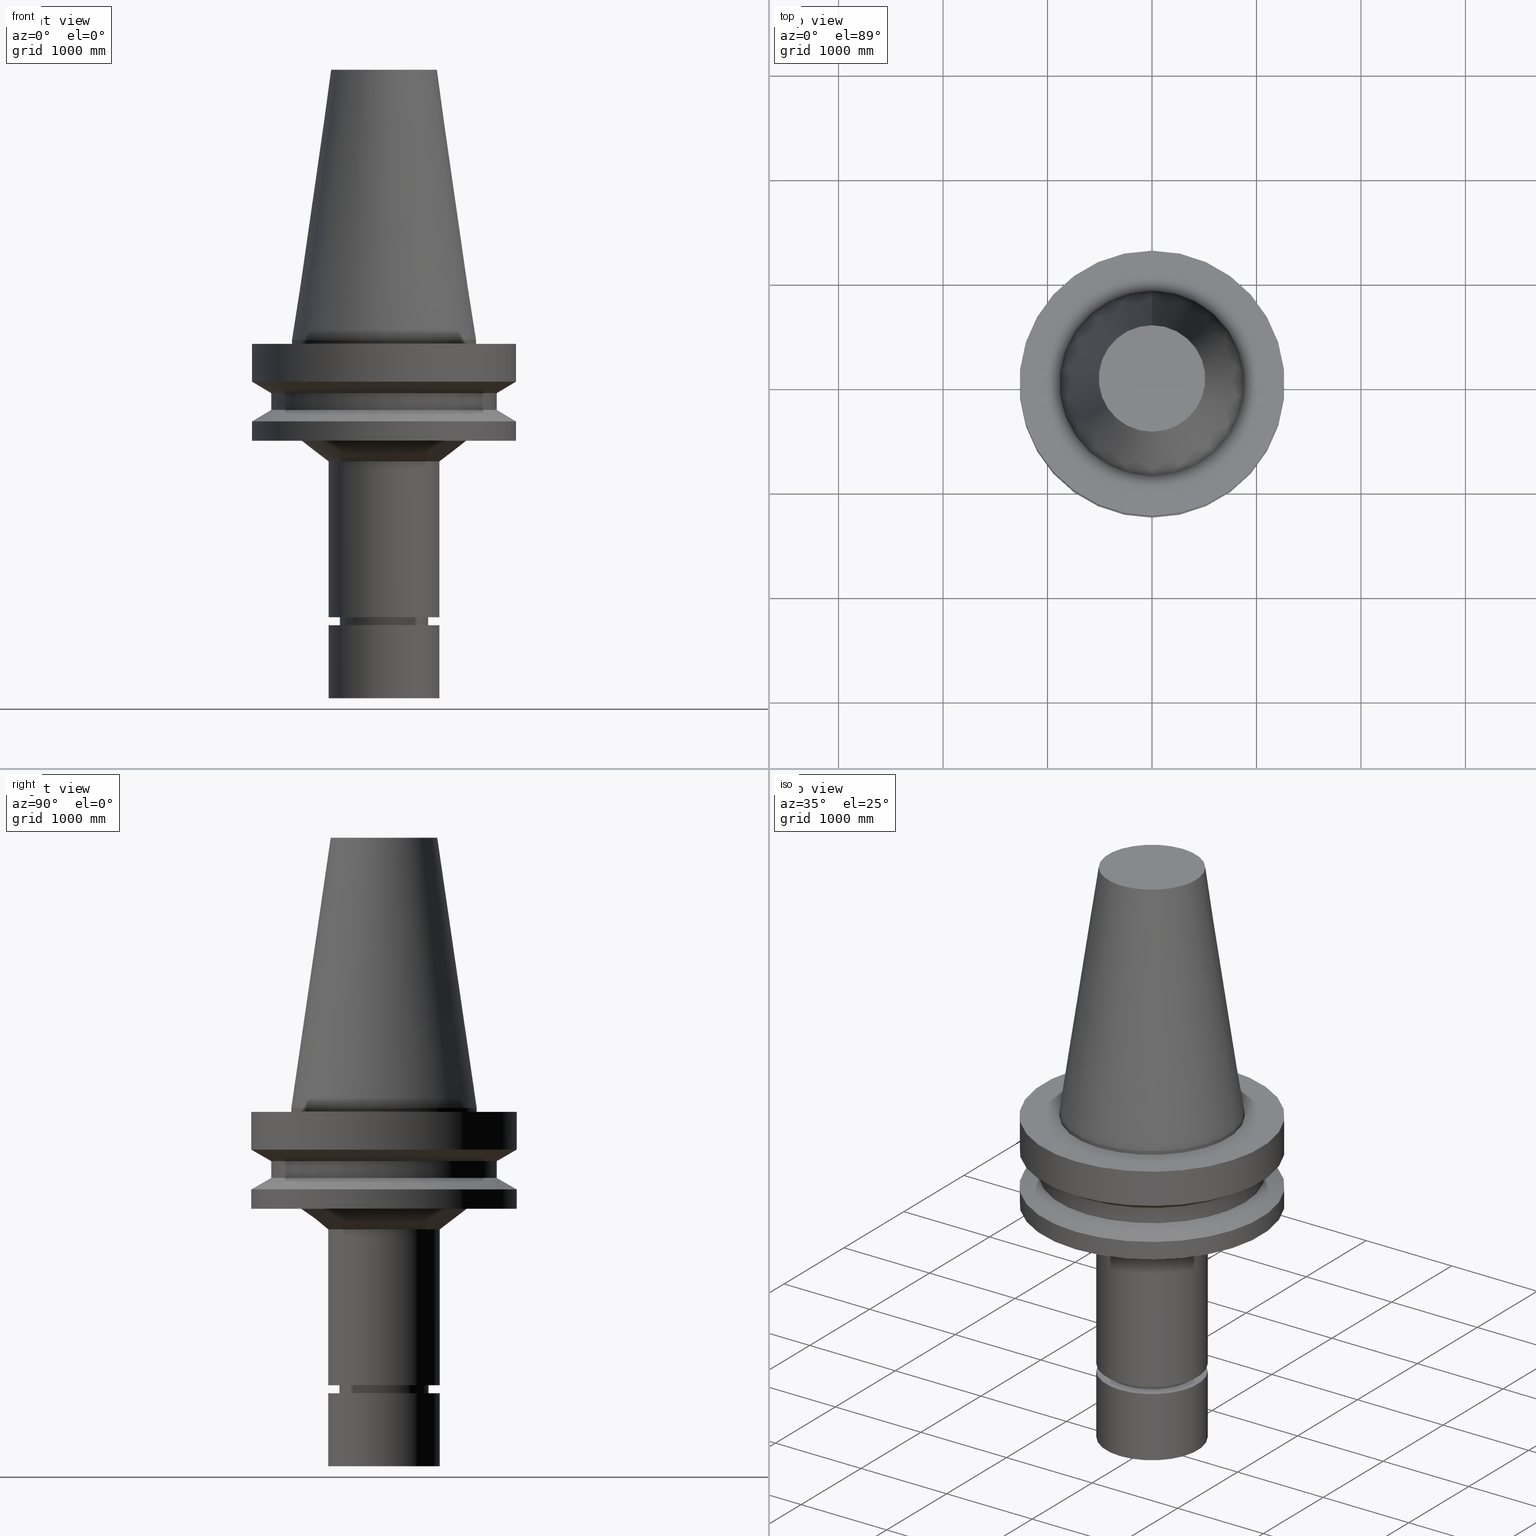
[diagram: canonical four-view strip — front | top / right | iso, engineering-drawing reading convention]
A machine part, canonical four-view strip (front | top / right | iso — engineering-drawing reading convention). The complete STEP part file that produces these views, byte-faithful:
ISO-10303-21;
HEADER;
FILE_DESCRIPTION((''),'1');
FILE_NAME('V:/90_\X2\53D65F9730C730FC30BF\X0\/00_\X2\6DE18DEF30C730FC30BF\X0\/ALL/BBT-BKUS\X2\FF76FF80FF9BFF78FF9E752852A05DE556F3\X0\201801/BBT50-MEGAER/BBT50-MEGAER25-135NL.stp','2018-02-02T08:09:22',(''),(''),'Spatial Interop R21 SP3','Kubotek KeyCreator 2011 V10.0.2 (22737)',' ');
FILE_SCHEMA(('automotive_design'));
ENDSEC;
DATA;
#1=MECHANICAL_DESIGN_GEOMETRIC_PRESENTATION_REPRESENTATION(' ',(#14,#15,#16,#17,#18,#19,#20,#21,#22,#23,#24,#25,#26,#27,#28,#29,#30,#31,#32,#33,#34,#35,#36,#37,#38,#39,#40,#41,#42,#43,#44,#45,#46,#47,#48,#49,#50,#51,#52,#53,#54,#55),#10);
#2=PRODUCT_DEFINITION_CONTEXT('',#56,'design');
#3=APPLICATION_PROTOCOL_DEFINITION('INTERNATIONAL STANDARD','automotive_design',1994,#56);
#4=PRODUCT_CATEGORY_RELATIONSHIP('NONE','NONE',#57,#58);
#5=SHAPE_DEFINITION_REPRESENTATION(#59,#60);
#6=PRODUCT_DEFINITION_CONTEXT('',#61,'design');
#7=APPLICATION_PROTOCOL_DEFINITION('INTERNATIONAL STANDARD','automotive_design',1994,#61);
#8=PRODUCT_CATEGORY_RELATIONSHIP('NONE','NONE',#62,#63);
#9=SHAPE_DEFINITION_REPRESENTATION(#64,#65);
#10= (GEOMETRIC_REPRESENTATION_CONTEXT(3)GLOBAL_UNCERTAINTY_ASSIGNED_CONTEXT((#68))GLOBAL_UNIT_ASSIGNED_CONTEXT((#70,#71,#72))REPRESENTATION_CONTEXT('NONE','WORKSPACE'));
#14=STYLED_ITEM('',(#74),#75);
#15=STYLED_ITEM('',(#76,#77),#78);
#16=STYLED_ITEM('',(#79),#80);
#17=STYLED_ITEM('',(#81,#82),#83);
#18=STYLED_ITEM('',(#84),#85);
#19=STYLED_ITEM('',(#86,#87),#88);
#20=STYLED_ITEM('',(#89),#90);
#21=STYLED_ITEM('',(#91),#92);
#22=STYLED_ITEM('',(#93,#94),#95);
#23=STYLED_ITEM('',(#96,#97),#98);
#24=STYLED_ITEM('',(#99),#100);
#25=STYLED_ITEM('',(#101),#102);
#26=STYLED_ITEM('',(#103,#104),#105);
#27=STYLED_ITEM('',(#106,#107),#108);
#28=STYLED_ITEM('',(#109,#110),#111);
#29=STYLED_ITEM('',(#112),#113);
#30=STYLED_ITEM('',(#114),#115);
#31=STYLED_ITEM('',(#116),#117);
#32=STYLED_ITEM('',(#118),#119);
#33=STYLED_ITEM('',(#120),#121);
#34=STYLED_ITEM('',(#122,#123),#124);
#35=STYLED_ITEM('',(#125,#126),#127);
#36=STYLED_ITEM('',(#128),#129);
#37=STYLED_ITEM('',(#130),#131);
#38=STYLED_ITEM('',(#132,#133),#134);
#39=STYLED_ITEM('',(#135,#136),#137);
#40=STYLED_ITEM('',(#138,#139),#140);
#41=STYLED_ITEM('',(#141,#142),#143);
#42=STYLED_ITEM('',(#144,#145),#146);
#43=STYLED_ITEM('',(#147,#148),#149);
#44=STYLED_ITEM('',(#150),#151);
#45=STYLED_ITEM('',(#152,#153),#154);
#46=STYLED_ITEM('',(#155,#156),#157);
#47=STYLED_ITEM('',(#158,#159),#160);
#48=STYLED_ITEM('',(#161,#162),#163);
#49=STYLED_ITEM('',(#164),#165);
#50=STYLED_ITEM('',(#166,#167),#168);
#51=STYLED_ITEM('',(#169),#170);
#52=STYLED_ITEM('',(#171,#172),#173);
#53=STYLED_ITEM('',(#174),#175);
#54=STYLED_ITEM('',(#176,#177),#178);
#55=STYLED_ITEM('',(#179),#180);
#56=APPLICATION_CONTEXT(' ');
#57=PRODUCT_CATEGORY('part','NONE');
#58=PRODUCT_RELATED_PRODUCT_CATEGORY('detail',' ',(#181));
#59=PRODUCT_DEFINITION_SHAPE('NONE','NONE',#182);
#60=ADVANCED_BREP_SHAPE_REPRESENTATION('Unnamed[1]',(#111,#183),#10);
#61=APPLICATION_CONTEXT(' ');
#62=PRODUCT_CATEGORY('part','NONE');
#63=PRODUCT_RELATED_PRODUCT_CATEGORY('detail',' ',(#184));
#64=PRODUCT_DEFINITION_SHAPE('NONE','NONE',#185);
#65=ADVANCED_BREP_SHAPE_REPRESENTATION('Unnamed[1]',(#95,#186),#10);
#68=UNCERTAINTY_MEASURE_WITH_UNIT(LENGTH_MEASURE(1.0E-006),#70,'','');
#70= (CONVERSION_BASED_UNIT('INCH',#189)LENGTH_UNIT()NAMED_UNIT(#192));
#71= (NAMED_UNIT(#194)PLANE_ANGLE_UNIT()SI_UNIT($,.RADIAN.));
#72= (NAMED_UNIT(#194)SOLID_ANGLE_UNIT()SI_UNIT($,.STERADIAN.));
#74=PRESENTATION_STYLE_ASSIGNMENT((#200));
#75=EDGE_CURVE('Unnamed[1]',#201,#201,#202,.T.);
#76=PRESENTATION_STYLE_ASSIGNMENT((#203));
#77=PRESENTATION_STYLE_ASSIGNMENT((#204));
#78=ADVANCED_FACE('Unnamed[1]',(#205,#206),#207,.T.);
#79=PRESENTATION_STYLE_ASSIGNMENT((#208));
#80=EDGE_CURVE('Unnamed[1]',#209,#209,#210,.T.);
#81=PRESENTATION_STYLE_ASSIGNMENT((#211));
#82=PRESENTATION_STYLE_ASSIGNMENT((#212));
#83=ADVANCED_FACE('Unnamed[1]',(#213,#214),#215,.T.);
#84=PRESENTATION_STYLE_ASSIGNMENT((#216));
#85=EDGE_CURVE('Unnamed[1]',#217,#217,#218,.T.);
#86=PRESENTATION_STYLE_ASSIGNMENT((#219));
#87=PRESENTATION_STYLE_ASSIGNMENT((#220));
#88=ADVANCED_FACE('Unnamed[1]',(#221,#222),#223,.T.);
#89=PRESENTATION_STYLE_ASSIGNMENT((#224));
#90=EDGE_CURVE('Unnamed[1]',#225,#225,#226,.T.);
#91=PRESENTATION_STYLE_ASSIGNMENT((#227));
#92=EDGE_CURVE('Unnamed[1]',#228,#228,#229,.T.);
#93=PRESENTATION_STYLE_ASSIGNMENT((#230));
#94=PRESENTATION_STYLE_ASSIGNMENT((#231));
#95=MANIFOLD_SOLID_BREP('Unnamed[1]',#232);
#96=PRESENTATION_STYLE_ASSIGNMENT((#233));
#97=PRESENTATION_STYLE_ASSIGNMENT((#234));
#98=ADVANCED_FACE('Unnamed[1]',(#235,#236),#237,.T.);
#99=PRESENTATION_STYLE_ASSIGNMENT((#238));
#100=EDGE_CURVE('Unnamed[1]',#239,#239,#240,.T.);
#101=PRESENTATION_STYLE_ASSIGNMENT((#241));
#102=EDGE_CURVE('Unnamed[1]',#242,#242,#243,.T.);
#103=PRESENTATION_STYLE_ASSIGNMENT((#244));
#104=PRESENTATION_STYLE_ASSIGNMENT((#245));
#105=ADVANCED_FACE('Unnamed[1]',(#246),#247,.T.);
#106=PRESENTATION_STYLE_ASSIGNMENT((#248));
#107=PRESENTATION_STYLE_ASSIGNMENT((#249));
#108=ADVANCED_FACE('Unnamed[1]',(#250,#251),#252,.T.);
#109=PRESENTATION_STYLE_ASSIGNMENT((#253));
#110=PRESENTATION_STYLE_ASSIGNMENT((#254));
#111=MANIFOLD_SOLID_BREP('Unnamed[1]',#255);
#112=PRESENTATION_STYLE_ASSIGNMENT((#256));
#113=EDGE_CURVE('Unnamed[1]',#257,#257,#258,.T.);
#114=PRESENTATION_STYLE_ASSIGNMENT((#259));
#115=EDGE_CURVE('Unnamed[1]',#260,#260,#261,.T.);
#116=PRESENTATION_STYLE_ASSIGNMENT((#262));
#117=EDGE_CURVE('Unnamed[1]',#263,#263,#264,.T.);
#118=PRESENTATION_STYLE_ASSIGNMENT((#265));
#119=EDGE_CURVE('Unnamed[1]',#266,#266,#267,.T.);
#120=PRESENTATION_STYLE_ASSIGNMENT((#268));
#121=EDGE_CURVE('Unnamed[1]',#269,#269,#270,.T.);
#122=PRESENTATION_STYLE_ASSIGNMENT((#271));
#123=PRESENTATION_STYLE_ASSIGNMENT((#272));
#124=ADVANCED_FACE('Unnamed[1]',(#273,#274),#275,.T.);
#125=PRESENTATION_STYLE_ASSIGNMENT((#276));
#126=PRESENTATION_STYLE_ASSIGNMENT((#277));
#127=ADVANCED_FACE('Unnamed[1]',(#278,#279),#280,.T.);
#128=PRESENTATION_STYLE_ASSIGNMENT((#281));
#129=EDGE_CURVE('Unnamed[1]',#282,#282,#283,.T.);
#130=PRESENTATION_STYLE_ASSIGNMENT((#284));
#131=EDGE_CURVE('Unnamed[1]',#285,#285,#286,.T.);
#132=PRESENTATION_STYLE_ASSIGNMENT((#287));
#133=PRESENTATION_STYLE_ASSIGNMENT((#288));
#134=ADVANCED_FACE('Unnamed[1]',(#289,#290),#291,.T.);
#135=PRESENTATION_STYLE_ASSIGNMENT((#292));
#136=PRESENTATION_STYLE_ASSIGNMENT((#293));
#137=ADVANCED_FACE('Unnamed[1]',(#294,#295),#296,.T.);
#138=PRESENTATION_STYLE_ASSIGNMENT((#297));
#139=PRESENTATION_STYLE_ASSIGNMENT((#298));
#140=ADVANCED_FACE('Unnamed[1]',(#299,#300),#301,.T.);
#141=PRESENTATION_STYLE_ASSIGNMENT((#302));
#142=PRESENTATION_STYLE_ASSIGNMENT((#303));
#143=ADVANCED_FACE('Unnamed[1]',(#304),#305,.T.);
#144=PRESENTATION_STYLE_ASSIGNMENT((#306));
#145=PRESENTATION_STYLE_ASSIGNMENT((#307));
#146=ADVANCED_FACE('Unnamed[1]',(#308,#309),#310,.T.);
#147=PRESENTATION_STYLE_ASSIGNMENT((#311));
#148=PRESENTATION_STYLE_ASSIGNMENT((#312));
#149=ADVANCED_FACE('Unnamed[1]',(#313,#314),#315,.T.);
#150=PRESENTATION_STYLE_ASSIGNMENT((#316));
#151=EDGE_CURVE('Unnamed[1]',#317,#317,#318,.T.);
#152=PRESENTATION_STYLE_ASSIGNMENT((#319));
#153=PRESENTATION_STYLE_ASSIGNMENT((#320));
#154=ADVANCED_FACE('Unnamed[1]',(#321,#322),#323,.T.);
#155=PRESENTATION_STYLE_ASSIGNMENT((#324));
#156=PRESENTATION_STYLE_ASSIGNMENT((#325));
#157=ADVANCED_FACE('Unnamed[1]',(#326,#327),#328,.T.);
#158=PRESENTATION_STYLE_ASSIGNMENT((#329));
#159=PRESENTATION_STYLE_ASSIGNMENT((#330));
#160=ADVANCED_FACE('Unnamed[1]',(#331),#332,.T.);
#161=PRESENTATION_STYLE_ASSIGNMENT((#333));
#162=PRESENTATION_STYLE_ASSIGNMENT((#334));
#163=ADVANCED_FACE('Unnamed[1]',(#335,#336),#337,.T.);
#164=PRESENTATION_STYLE_ASSIGNMENT((#338));
#165=EDGE_CURVE('Unnamed[1]',#339,#339,#340,.T.);
#166=PRESENTATION_STYLE_ASSIGNMENT((#341));
#167=PRESENTATION_STYLE_ASSIGNMENT((#342));
#168=ADVANCED_FACE('Unnamed[1]',(#343),#344,.T.);
#169=PRESENTATION_STYLE_ASSIGNMENT((#345));
#170=EDGE_CURVE('Unnamed[1]',#346,#346,#347,.T.);
#171=PRESENTATION_STYLE_ASSIGNMENT((#348));
#172=PRESENTATION_STYLE_ASSIGNMENT((#349));
#173=ADVANCED_FACE('Unnamed[1]',(#350,#351),#352,.T.);
#174=PRESENTATION_STYLE_ASSIGNMENT((#353));
#175=EDGE_CURVE('Unnamed[1]',#354,#354,#355,.T.);
#176=PRESENTATION_STYLE_ASSIGNMENT((#356));
#177=PRESENTATION_STYLE_ASSIGNMENT((#357));
#178=ADVANCED_FACE('Unnamed[1]',(#358,#359),#360,.T.);
#179=PRESENTATION_STYLE_ASSIGNMENT((#361));
#180=EDGE_CURVE('Unnamed[1]',#362,#362,#363,.T.);
#181=PRODUCT('Unnamed[1]','Unnamed[1]','PART-Unnamed[1]-DESC',(#364));
#182=PRODUCT_DEFINITION('NONE','NONE',#365,#2);
#183=AXIS2_PLACEMENT_3D('',#366,#367,#368);
#184=PRODUCT('Unnamed[1]','Unnamed[1]','PART-Unnamed[1]-DESC',(#369));
#185=PRODUCT_DEFINITION('NONE','NONE',#370,#6);
#186=AXIS2_PLACEMENT_3D('',#371,#372,#373);
#189=LENGTH_MEASURE_WITH_UNIT(LENGTH_MEASURE(25.4),#374);
#192=DIMENSIONAL_EXPONENTS(1.0,0.0,0.0,0.0,0.0,0.0,0.0);
#194=DIMENSIONAL_EXPONENTS(0.0,0.0,0.0,0.0,0.0,0.0,0.0);
#200=CURVE_STYLE('',#375,POSITIVE_LENGTH_MEASURE(1000.0),#376);
#201=VERTEX_POINT('',#377);
#202=CIRCLE('',#378,20.9999999999932);
#203=SURFACE_STYLE_USAGE(.BOTH.,#379);
#204=CURVE_STYLE('',#380,POSITIVE_LENGTH_MEASURE(1000.0),#381);
#205=FACE_OUTER_BOUND('',#382,.T.);
#206=FACE_BOUND('',#383,.T.);
#207=PLANE('',#384);
#208=CURVE_STYLE('',#385,POSITIVE_LENGTH_MEASURE(1000.0),#386);
#209=VERTEX_POINT('',#387);
#210=CIRCLE('',#388,16.7500000000017);
#211=SURFACE_STYLE_USAGE(.BOTH.,#389);
#212=CURVE_STYLE('',#390,POSITIVE_LENGTH_MEASURE(1000.0),#391);
#213=FACE_OUTER_BOUND('',#392,.T.);
#214=FACE_BOUND('',#393,.T.);
#215=PLANE('',#394);
#216=CURVE_STYLE('',#395,POSITIVE_LENGTH_MEASURE(1000.0),#396);
#217=VERTEX_POINT('',#397);
#218=CIRCLE('',#398,16.7499999999907);
#219=SURFACE_STYLE_USAGE(.BOTH.,#399);
#220=CURVE_STYLE('',#400,POSITIVE_LENGTH_MEASURE(1000.0),#401);
#221=FACE_BOUND('',#402,.T.);
#222=FACE_BOUND('',#403,.T.);
#223=CYLINDRICAL_SURFACE('',#404,16.0);
#224=CURVE_STYLE('',#405,POSITIVE_LENGTH_MEASURE(1000.0),#406);
#225=VERTEX_POINT('',#407);
#226=CIRCLE('',#408,50.0);
#227=CURVE_STYLE('',#409,POSITIVE_LENGTH_MEASURE(1000.0),#410);
#228=VERTEX_POINT('',#411);
#229=CIRCLE('',#412,50.0);
#230=SURFACE_STYLE_USAGE(.BOTH.,#413);
#231=CURVE_STYLE('',#414,POSITIVE_LENGTH_MEASURE(1000.0),#415);
#232=CLOSED_SHELL('',(#160,#168,#137));
#233=SURFACE_STYLE_USAGE(.BOTH.,#416);
#234=CURVE_STYLE('',#417,POSITIVE_LENGTH_MEASURE(1000.0),#418);
#235=FACE_BOUND('',#419,.T.);
#236=FACE_BOUND('',#420,.T.);
#237=CONICAL_SURFACE('',#421,46.25,1.04719755108882);
#238=CURVE_STYLE('',#422,POSITIVE_LENGTH_MEASURE(1000.0),#423);
#239=VERTEX_POINT('',#424);
#240=CIRCLE('',#425,20.0791666651884);
#241=CURVE_STYLE('',#426,POSITIVE_LENGTH_MEASURE(1000.0),#427);
#242=VERTEX_POINT('',#428);
#243=CIRCLE('',#429,50.0);
#244=SURFACE_STYLE_USAGE(.BOTH.,#430);
#245=CURVE_STYLE('',#431,POSITIVE_LENGTH_MEASURE(1000.0),#432);
#246=FACE_OUTER_BOUND('',#433,.T.);
#247=PLANE('',#434);
#248=SURFACE_STYLE_USAGE(.BOTH.,#435);
#249=CURVE_STYLE('',#436,POSITIVE_LENGTH_MEASURE(1000.0),#437);
#250=FACE_BOUND('',#438,.T.);
#251=FACE_BOUND('',#439,.T.);
#252=CONICAL_SURFACE('',#440,16.3750000000008,1.04719755120059);
#253=SURFACE_STYLE_USAGE(.BOTH.,#441);
#254=CURVE_STYLE('',#442,POSITIVE_LENGTH_MEASURE(1000.0),#443);
#255=CLOSED_SHELL('',(#105,#124,#88,#108,#134,#83,#163,#146,#78,#140,#98,#157,#178,#173,#149,#154,#127,#143));
#256=CURVE_STYLE('',#444,POSITIVE_LENGTH_MEASURE(1000.0),#445);
#257=VERTEX_POINT('',#446);
#258=CIRCLE('',#447,42.5);
#259=CURVE_STYLE('',#448,POSITIVE_LENGTH_MEASURE(1000.0),#449);
#260=VERTEX_POINT('',#450);
#261=CIRCLE('',#451,50.0);
#262=CURVE_STYLE('',#452,POSITIVE_LENGTH_MEASURE(1000.0),#453);
#263=VERTEX_POINT('',#454);
#264=CIRCLE('',#455,21.0);
#265=CURVE_STYLE('',#456,POSITIVE_LENGTH_MEASURE(1000.0),#457);
#266=VERTEX_POINT('',#458);
#267=CIRCLE('',#459,16.0);
#268=CURVE_STYLE('',#460,POSITIVE_LENGTH_MEASURE(1000.0),#461);
#269=VERTEX_POINT('',#462);
#270=CIRCLE('',#463,14.9000000000006);
#271=SURFACE_STYLE_USAGE(.BOTH.,#464);
#272=CURVE_STYLE('',#465,POSITIVE_LENGTH_MEASURE(1000.0),#466);
#273=FACE_BOUND('',#467,.T.);
#274=FACE_BOUND('',#468,.T.);
#275=CONICAL_SURFACE('',#469,15.4500000000003,0.523598775598057);
#276=SURFACE_STYLE_USAGE(.BOTH.,#470);
#277=CURVE_STYLE('',#471,POSITIVE_LENGTH_MEASURE(1000.0),#472);
#278=FACE_BOUND('',#473,.T.);
#279=FACE_BOUND('',#474,.T.);
#280=CONICAL_SURFACE('',#475,27.5020833325942,0.144812498253157);
#281=CURVE_STYLE('',#476,POSITIVE_LENGTH_MEASURE(1000.0),#477);
#282=VERTEX_POINT('',#478);
#283=CIRCLE('',#479,42.5);
#284=CURVE_STYLE('',#480,POSITIVE_LENGTH_MEASURE(1000.0),#481);
#285=VERTEX_POINT('',#482);
#286=CIRCLE('',#483,34.925);
#287=SURFACE_STYLE_USAGE(.BOTH.,#484);
#288=CURVE_STYLE('',#485,POSITIVE_LENGTH_MEASURE(1000.0),#486);
#289=FACE_BOUND('',#487,.T.);
#290=FACE_BOUND('',#488,.T.);
#291=CYLINDRICAL_SURFACE('',#489,16.7499999999962);
#292=SURFACE_STYLE_USAGE(.BOTH.,#490);
#293=CURVE_STYLE('',#491,POSITIVE_LENGTH_MEASURE(1000.0),#492);
#294=FACE_BOUND('',#493,.T.);
#295=FACE_BOUND('',#494,.T.);
#296=CYLINDRICAL_SURFACE('',#495,21.0);
#297=SURFACE_STYLE_USAGE(.BOTH.,#496);
#298=CURVE_STYLE('',#497,POSITIVE_LENGTH_MEASURE(1000.0),#498);
#299=FACE_BOUND('',#499,.T.);
#300=FACE_BOUND('',#500,.T.);
#301=CYLINDRICAL_SURFACE('',#501,50.0);
#302=SURFACE_STYLE_USAGE(.BOTH.,#502);
#303=CURVE_STYLE('',#503,POSITIVE_LENGTH_MEASURE(1000.0),#504);
#304=FACE_OUTER_BOUND('',#505,.T.);
#305=PLANE('',#506);
#306=SURFACE_STYLE_USAGE(.BOTH.,#507);
#307=CURVE_STYLE('',#508,POSITIVE_LENGTH_MEASURE(1000.0),#509);
#308=FACE_BOUND('',#510,.T.);
#309=FACE_BOUND('',#511,.T.);
#310=CONICAL_SURFACE('',#512,26.0717863494507,0.917452320133911);
#311=SURFACE_STYLE_USAGE(.BOTH.,#513);
#312=CURVE_STYLE('',#514,POSITIVE_LENGTH_MEASURE(1000.0),#515);
#313=FACE_BOUND('',#516,.T.);
#314=FACE_OUTER_BOUND('',#517,.T.);
#315=PLANE('',#518);
#316=CURVE_STYLE('',#519,POSITIVE_LENGTH_MEASURE(1000.0),#520);
#317=VERTEX_POINT('',#521);
#318=CIRCLE('',#522,21.0000000000002);
#319=SURFACE_STYLE_USAGE(.BOTH.,#523);
#320=CURVE_STYLE('',#524,POSITIVE_LENGTH_MEASURE(1000.0),#525);
#321=FACE_BOUND('',#526,.T.);
#322=FACE_BOUND('',#527,.T.);
#323=CYLINDRICAL_SURFACE('',#528,34.925);
#324=SURFACE_STYLE_USAGE(.BOTH.,#529);
#325=CURVE_STYLE('',#530,POSITIVE_LENGTH_MEASURE(1000.0),#531);
#326=FACE_BOUND('',#532,.T.);
#327=FACE_BOUND('',#533,.T.);
#328=CYLINDRICAL_SURFACE('',#534,42.5);
#329=SURFACE_STYLE_USAGE(.BOTH.,#535);
#330=CURVE_STYLE('',#536,POSITIVE_LENGTH_MEASURE(1000.0),#537);
#331=FACE_OUTER_BOUND('',#538,.T.);
#332=PLANE('',#539);
#333=SURFACE_STYLE_USAGE(.BOTH.,#540);
#334=CURVE_STYLE('',#541,POSITIVE_LENGTH_MEASURE(1000.0),#542);
#335=FACE_BOUND('',#543,.T.);
#336=FACE_BOUND('',#544,.T.);
#337=CYLINDRICAL_SURFACE('',#545,20.9999999999967);
#338=CURVE_STYLE('',#546,POSITIVE_LENGTH_MEASURE(1000.0),#547);
#339=VERTEX_POINT('',#548);
#340=CIRCLE('',#549,31.1435726989081);
#341=SURFACE_STYLE_USAGE(.BOTH.,#550);
#342=CURVE_STYLE('',#551,POSITIVE_LENGTH_MEASURE(1000.0),#552);
#343=FACE_OUTER_BOUND('',#553,.T.);
#344=PLANE('',#554);
#345=CURVE_STYLE('',#555,POSITIVE_LENGTH_MEASURE(1000.0),#556);
#346=VERTEX_POINT('',#557);
#347=CIRCLE('',#558,16.0);
#348=SURFACE_STYLE_USAGE(.BOTH.,#559);
#349=CURVE_STYLE('',#560,POSITIVE_LENGTH_MEASURE(1000.0),#561);
#350=FACE_BOUND('',#562,.T.);
#351=FACE_BOUND('',#563,.T.);
#352=CYLINDRICAL_SURFACE('',#564,50.0);
#353=CURVE_STYLE('',#565,POSITIVE_LENGTH_MEASURE(1000.0),#566);
#354=VERTEX_POINT('',#567);
#355=CIRCLE('',#568,34.925);
#356=SURFACE_STYLE_USAGE(.BOTH.,#569);
#357=CURVE_STYLE('',#570,POSITIVE_LENGTH_MEASURE(1000.0),#571);
#358=FACE_BOUND('',#572,.T.);
#359=FACE_BOUND('',#573,.T.);
#360=CONICAL_SURFACE('',#574,46.25,1.04719755108882);
#361=CURVE_STYLE('',#575,POSITIVE_LENGTH_MEASURE(1000.0),#576);
#362=VERTEX_POINT('',#577);
#363=CIRCLE('',#578,21.0);
#364=PRODUCT_CONTEXT('',#56,'mechanical');
#365=PRODUCT_DEFINITION_FORMATION_WITH_SPECIFIED_SOURCE(' ','NONE',#181,.NOT_KNOWN.);
#366=CARTESIAN_POINT('',(0.0,0.0,0.0));
#367=DIRECTION('',(0.0,0.0,1.0));
#368=DIRECTION('',(1.0,0.0,0.0));
#369=PRODUCT_CONTEXT('',#61,'mechanical');
#370=PRODUCT_DEFINITION_FORMATION_WITH_SPECIFIED_SOURCE(' ','NONE',#184,.NOT_KNOWN.);
#371=CARTESIAN_POINT('',(0.0,0.0,0.0));
#372=DIRECTION('',(0.0,0.0,1.0));
#373=DIRECTION('',(1.0,0.0,0.0));
#374= (NAMED_UNIT(#192)LENGTH_UNIT()SI_UNIT(.MILLI.,.METRE.));
#375=DRAUGHTING_PRE_DEFINED_CURVE_FONT('continuous');
#376=COLOUR_RGB('',0.0,1.0,0.0);
#377=CARTESIAN_POINT('',(2.80228874343689E-015,20.9999999999932,-45.7648482058329));
#378=AXIS2_PLACEMENT_3D('',#580,#581,#582);
#379=SURFACE_SIDE_STYLE('',(#583));
#380=DRAUGHTING_PRE_DEFINED_CURVE_FONT('continuous');
#381=COLOUR_RGB('',0.0,1.0,0.0);
#382=EDGE_LOOP('',(#584));
#383=EDGE_LOOP('',(#585));
#384=AXIS2_PLACEMENT_3D('',#586,#587,#588);
#385=DRAUGHTING_PRE_DEFINED_CURVE_FONT('continuous');
#386=COLOUR_RGB('',0.0,1.0,0.0);
#387=CARTESIAN_POINT('',(6.7641727903392E-015,16.7500000000017,-110.467324865401));
#388=AXIS2_PLACEMENT_3D('',#589,#590,#591);
#389=SURFACE_SIDE_STYLE('',(#592));
#390=DRAUGHTING_PRE_DEFINED_CURVE_FONT('continuous');
#391=COLOUR_RGB('',0.0,1.0,0.0);
#392=EDGE_LOOP('',(#593));
#393=EDGE_LOOP('',(#594));
#394=AXIS2_PLACEMENT_3D('',#595,#596,#597);
#395=DRAUGHTING_PRE_DEFINED_CURVE_FONT('continuous');
#396=COLOUR_RGB('',0.0,1.0,0.0);
#397=CARTESIAN_POINT('',(6.39877952554487E-015,16.7499999999907,-104.499999999999));
#398=AXIS2_PLACEMENT_3D('',#598,#599,#600);
#399=SURFACE_SIDE_STYLE('',(#601));
#400=DRAUGHTING_PRE_DEFINED_CURVE_FONT('continuous');
#401=COLOUR_RGB('',0.0,1.0,0.0);
#402=EDGE_LOOP('',(#602));
#403=EDGE_LOOP('',(#603));
#404=AXIS2_PLACEMENT_3D('',#604,#605,#606);
#405=DRAUGHTING_PRE_DEFINED_CURVE_FONT('continuous');
#406=COLOUR_RGB('',0.0,1.0,0.0);
#407=CARTESIAN_POINT('',(9.61347737330674E-016,50.0,-15.7));
#408=AXIS2_PLACEMENT_3D('',#607,#608,#609);
#409=DRAUGHTING_PRE_DEFINED_CURVE_FONT('continuous');
#410=COLOUR_RGB('',0.0,1.0,0.0);
#411=CARTESIAN_POINT('',(9.18485099360509E-017,50.0,-1.49999999999999));
#412=AXIS2_PLACEMENT_3D('',#610,#611,#612);
#413=SURFACE_SIDE_STYLE('',(#613));
#414=DRAUGHTING_PRE_DEFINED_CURVE_FONT('continuous');
#415=COLOUR_RGB('',0.0,1.0,0.0);
#416=SURFACE_SIDE_STYLE('',(#614));
#417=DRAUGHTING_PRE_DEFINED_CURVE_FONT('continuous');
#418=COLOUR_RGB('',0.0,1.0,0.0);
#419=EDGE_LOOP('',(#615));
#420=EDGE_LOOP('',(#616));
#421=AXIS2_PLACEMENT_3D('',#617,#618,#619);
#422=DRAUGHTING_PRE_DEFINED_CURVE_FONT('continuous');
#423=COLOUR_RGB('',0.0,1.0,0.0);
#424=CARTESIAN_POINT('',(-6.23345220766003E-015,20.0791666651884,101.8));
#425=AXIS2_PLACEMENT_3D('',#620,#621,#622);
#426=DRAUGHTING_PRE_DEFINED_CURVE_FONT('continuous');
#427=COLOUR_RGB('',0.0,1.0,0.0);
#428=CARTESIAN_POINT('',(2.32682891837996E-015,50.0,-37.9999999999998));
#429=AXIS2_PLACEMENT_3D('',#623,#624,#625);
#430=SURFACE_SIDE_STYLE('',(#626));
#431=DRAUGHTING_PRE_DEFINED_CURVE_FONT('continuous');
#432=COLOUR_RGB('',0.0,1.0,0.0);
#433=EDGE_LOOP('',(#627));
#434=AXIS2_PLACEMENT_3D('',#628,#629,#630);
#435=SURFACE_SIDE_STYLE('',(#631));
#436=DRAUGHTING_PRE_DEFINED_CURVE_FONT('continuous');
#437=COLOUR_RGB('',0.0,1.0,0.0);
#438=EDGE_LOOP('',(#632));
#439=EDGE_LOOP('',(#633));
#440=AXIS2_PLACEMENT_3D('',#634,#635,#636);
#441=SURFACE_SIDE_STYLE('',(#637));
#442=DRAUGHTING_PRE_DEFINED_CURVE_FONT('continuous');
#443=COLOUR_RGB('',0.0,1.0,0.0);
#444=DRAUGHTING_PRE_DEFINED_CURVE_FONT('continuous');
#445=COLOUR_RGB('',0.0,1.0,0.0);
#446=CARTESIAN_POINT('',(1.61468902694397E-015,42.5,-26.3698729800001));
#447=AXIS2_PLACEMENT_3D('',#638,#639,#640);
#448=DRAUGHTING_PRE_DEFINED_CURVE_FONT('continuous');
#449=COLOUR_RGB('',0.0,1.0,0.0);
#450=CARTESIAN_POINT('',(1.87983283669119E-015,50.0,-30.7000000000001));
#451=AXIS2_PLACEMENT_3D('',#641,#642,#643);
#452=DRAUGHTING_PRE_DEFINED_CURVE_FONT('continuous');
#453=COLOUR_RGB('',0.0,1.0,0.0);
#454=CARTESIAN_POINT('',(8.26636589424463E-015,21.0,-135.0));
#455=AXIS2_PLACEMENT_3D('',#644,#645,#646);
#456=DRAUGHTING_PRE_DEFINED_CURVE_FONT('continuous');
#457=COLOUR_RGB('',0.0,1.0,0.0);
#458=CARTESIAN_POINT('',(6.79068717130714E-015,16.0,-110.90033756729));
#459=AXIS2_PLACEMENT_3D('',#647,#648,#649);
#460=DRAUGHTING_PRE_DEFINED_CURVE_FONT('continuous');
#461=COLOUR_RGB('',0.0,1.0,0.0);
#462=CARTESIAN_POINT('',(7.6417960266795E-015,14.9000000000006,-124.8));
#463=AXIS2_PLACEMENT_3D('',#650,#651,#652);
#464=SURFACE_SIDE_STYLE('',(#653));
#465=DRAUGHTING_PRE_DEFINED_CURVE_FONT('continuous');
#466=COLOUR_RGB('',0.0,1.0,0.0);
#467=EDGE_LOOP('',(#654));
#468=EDGE_LOOP('',(#655));
#469=AXIS2_PLACEMENT_3D('',#656,#657,#658);
#470=SURFACE_SIDE_STYLE('',(#659));
#471=DRAUGHTING_PRE_DEFINED_CURVE_FONT('continuous');
#472=COLOUR_RGB('',0.0,1.0,0.0);
#473=EDGE_LOOP('',(#660));
#474=EDGE_LOOP('',(#661));
#475=AXIS2_PLACEMENT_3D('',#662,#663,#664);
#476=DRAUGHTING_PRE_DEFINED_CURVE_FONT('continuous');
#477=COLOUR_RGB('',0.0,1.0,0.0);
#478=CARTESIAN_POINT('',(1.2264915470779E-015,42.5,-20.03012702));
#479=AXIS2_PLACEMENT_3D('',#665,#666,#667);
#480=DRAUGHTING_PRE_DEFINED_CURVE_FONT('continuous');
#481=COLOUR_RGB('',0.0,1.0,0.0);
#482=CARTESIAN_POINT('',(-4.30483861169435E-031,34.925,4.27707894602213E-015));
#483=AXIS2_PLACEMENT_3D('',#668,#669,#670);
#484=SURFACE_SIDE_STYLE('',(#671));
#485=DRAUGHTING_PRE_DEFINED_CURVE_FONT('continuous');
#486=COLOUR_RGB('',0.0,1.0,0.0);
#487=EDGE_LOOP('',(#672));
#488=EDGE_LOOP('',(#673));
#489=AXIS2_PLACEMENT_3D('',#674,#675,#676);
#490=SURFACE_SIDE_STYLE('',(#677));
#491=DRAUGHTING_PRE_DEFINED_CURVE_FONT('continuous');
#492=COLOUR_RGB('',0.0,1.0,0.0);
#493=EDGE_LOOP('',(#678));
#494=EDGE_LOOP('',(#679));
#495=AXIS2_PLACEMENT_3D('',#680,#681,#682);
#496=SURFACE_SIDE_STYLE('',(#683));
#497=DRAUGHTING_PRE_DEFINED_CURVE_FONT('continuous');
#498=COLOUR_RGB('',0.0,1.0,0.0);
#499=EDGE_LOOP('',(#684));
#500=EDGE_LOOP('',(#685));
#501=AXIS2_PLACEMENT_3D('',#686,#687,#688);
#502=SURFACE_SIDE_STYLE('',(#689));
#503=DRAUGHTING_PRE_DEFINED_CURVE_FONT('continuous');
#504=COLOUR_RGB('',0.0,1.0,0.0);
#505=EDGE_LOOP('',(#690));
#506=AXIS2_PLACEMENT_3D('',#691,#692,#693);
#507=SURFACE_SIDE_STYLE('',(#694));
#508=DRAUGHTING_PRE_DEFINED_CURVE_FONT('continuous');
#509=COLOUR_RGB('',0.0,1.0,0.0);
#510=EDGE_LOOP('',(#695));
#511=EDGE_LOOP('',(#696));
#512=AXIS2_PLACEMENT_3D('',#697,#698,#699);
#513=SURFACE_SIDE_STYLE('',(#700));
#514=DRAUGHTING_PRE_DEFINED_CURVE_FONT('continuous');
#515=COLOUR_RGB('',0.0,1.0,0.0);
#516=EDGE_LOOP('',(#701));
#517=EDGE_LOOP('',(#702));
#518=AXIS2_PLACEMENT_3D('',#703,#704,#705);
#519=DRAUGHTING_PRE_DEFINED_CURVE_FONT('continuous');
#520=COLOUR_RGB('',0.0,1.0,0.0);
#521=CARTESIAN_POINT('',(6.39877952554491E-015,21.0000000000003,-104.5));
#522=AXIS2_PLACEMENT_3D('',#706,#707,#708);
#523=SURFACE_SIDE_STYLE('',(#709));
#524=DRAUGHTING_PRE_DEFINED_CURVE_FONT('continuous');
#525=COLOUR_RGB('',0.0,1.0,0.0);
#526=EDGE_LOOP('',(#710));
#527=EDGE_LOOP('',(#711));
#528=AXIS2_PLACEMENT_3D('',#712,#713,#714);
#529=SURFACE_SIDE_STYLE('',(#715));
#530=DRAUGHTING_PRE_DEFINED_CURVE_FONT('continuous');
#531=COLOUR_RGB('',0.0,1.0,0.0);
#532=EDGE_LOOP('',(#716));
#533=EDGE_LOOP('',(#717));
#534=AXIS2_PLACEMENT_3D('',#718,#719,#720);
#535=SURFACE_SIDE_STYLE('',(#721));
#536=DRAUGHTING_PRE_DEFINED_CURVE_FONT('continuous');
#537=COLOUR_RGB('',0.0,1.0,0.0);
#538=EDGE_LOOP('',(#722));
#539=AXIS2_PLACEMENT_3D('',#723,#724,#725);
#540=SURFACE_SIDE_STYLE('',(#726));
#541=DRAUGHTING_PRE_DEFINED_CURVE_FONT('continuous');
#542=COLOUR_RGB('',0.0,1.0,0.0);
#543=EDGE_LOOP('',(#727));
#544=EDGE_LOOP('',(#728));
#545=AXIS2_PLACEMENT_3D('',#729,#730,#731);
#546=DRAUGHTING_PRE_DEFINED_CURVE_FONT('continuous');
#547=COLOUR_RGB('',0.0,1.0,0.0);
#548=CARTESIAN_POINT('',(2.32682891837996E-015,31.1435726989082,-37.9999999999998));
#549=AXIS2_PLACEMENT_3D('',#732,#733,#734);
#550=SURFACE_SIDE_STYLE('',(#735));
#551=DRAUGHTING_PRE_DEFINED_CURVE_FONT('continuous');
#552=COLOUR_RGB('',0.0,1.0,0.0);
#553=EDGE_LOOP('',(#736));
#554=AXIS2_PLACEMENT_3D('',#737,#738,#739);
#555=DRAUGHTING_PRE_DEFINED_CURVE_FONT('continuous');
#556=COLOUR_RGB('',0.0,1.0,0.0);
#557=CARTESIAN_POINT('',(7.52513275041975E-015,16.0,-122.894744111674));
#558=AXIS2_PLACEMENT_3D('',#740,#741,#742);
#559=SURFACE_SIDE_STYLE('',(#743));
#560=DRAUGHTING_PRE_DEFINED_CURVE_FONT('continuous');
#561=COLOUR_RGB('',0.0,1.0,0.0);
#562=EDGE_LOOP('',(#744));
#563=EDGE_LOOP('',(#745));
#564=AXIS2_PLACEMENT_3D('',#746,#747,#748);
#565=DRAUGHTING_PRE_DEFINED_CURVE_FONT('continuous');
#566=COLOUR_RGB('',0.0,1.0,0.0);
#567=CARTESIAN_POINT('',(9.18485099360511E-017,34.925,-1.5));
#568=AXIS2_PLACEMENT_3D('',#749,#750,#751);
#569=SURFACE_SIDE_STYLE('',(#752));
#570=DRAUGHTING_PRE_DEFINED_CURVE_FONT('continuous');
#571=COLOUR_RGB('',0.0,1.0,0.0);
#572=EDGE_LOOP('',(#753));
#573=EDGE_LOOP('',(#754));
#574=AXIS2_PLACEMENT_3D('',#755,#756,#757);
#575=DRAUGHTING_PRE_DEFINED_CURVE_FONT('continuous');
#576=COLOUR_RGB('',0.0,1.0,0.0);
#577=CARTESIAN_POINT('',(6.58247654541702E-015,21.0,-107.5));
#578=AXIS2_PLACEMENT_3D('',#758,#759,#760);
#580=CARTESIAN_POINT('',(2.80228874343689E-015,1.52780275954612E-014,-45.7648482058329));
#581=DIRECTION('',(-6.12323399573677E-017,-1.5261999847715E-017,1.0));
#582=DIRECTION('',(-5.7616806938739E-033,1.0,1.5261999847715E-017));
#583=SURFACE_STYLE_FILL_AREA(#761);
#584=ORIENTED_EDGE('',*,*,#102,.F.);
#585=ORIENTED_EDGE('',*,*,#165,.T.);
#586=CARTESIAN_POINT('',(2.32682891837996E-015,40.5717863494541,-37.9999999999998));
#587=DIRECTION('',(6.12323399573677E-017,2.38336826811129E-015,-1.0));
#588=DIRECTION('',(1.50766368767362E-031,-1.0,-2.38336826811129E-015));
#589=CARTESIAN_POINT('',(6.7641727903392E-015,1.62655167843875E-014,-110.467324865401));
#590=DIRECTION('',(-6.12323399573677E-017,-1.52619998477544E-017,1.0));
#591=DIRECTION('',(-5.7616806938786E-033,1.0,1.52619998477544E-017));
#592=SURFACE_STYLE_FILL_AREA(#762);
#593=ORIENTED_EDGE('',*,*,#151,.F.);
#594=ORIENTED_EDGE('',*,*,#85,.T.);
#595=CARTESIAN_POINT('',(6.39877952554489E-015,18.8749999999955,-104.5));
#596=DIRECTION('',(6.12323399573677E-017,-1.63720330859695E-013,-1.0));
#597=DIRECTION('',(-1.00201518044028E-029,-1.0,1.63720330859695E-013));
#598=CARTESIAN_POINT('',(6.39877952554487E-015,1.61744434732004E-014,-104.499999999999));
#599=DIRECTION('',(-6.12323399573677E-017,-1.52619998477644E-017,1.0));
#600=DIRECTION('',(-5.76168069387701E-033,1.0,1.52619998477644E-017));
#601=SURFACE_STYLE_FILL_AREA(#763);
#602=ORIENTED_EDGE('',*,*,#119,.F.);
#603=ORIENTED_EDGE('',*,*,#170,.T.);
#604=CARTESIAN_POINT('',(7.15790996086345E-015,1.63636547396048E-014,-116.897540839482));
#605=DIRECTION('',(-6.12323399573677E-017,-1.52619998477725E-017,1.0));
#606=DIRECTION('',(-5.7616806938795E-033,1.0,1.52619998477725E-017));
#607=CARTESIAN_POINT('',(9.61347737330675E-016,1.48191778867216E-014,-15.7));
#608=DIRECTION('',(-6.12323399573677E-017,-1.52619998477039E-017,1.0));
#609=DIRECTION('',(-5.76168069387682E-033,1.0,1.52619998477039E-017));
#610=CARTESIAN_POINT('',(9.18485099360515E-017,1.46024574888838E-014,-1.5));
#611=DIRECTION('',(-6.12323399573677E-017,-1.52619998477039E-017,1.0));
#612=DIRECTION('',(-5.76168069387682E-033,1.0,1.52619998477039E-017));
#613=SURFACE_STYLE_FILL_AREA(#764);
#614=SURFACE_STYLE_FILL_AREA(#765);
#615=ORIENTED_EDGE('',*,*,#113,.F.);
#616=ORIENTED_EDGE('',*,*,#115,.T.);
#617=CARTESIAN_POINT('',(1.74726093181758E-015,1.50150646854777E-014,-28.5349364900001));
#618=DIRECTION('',(6.12323399573677E-017,1.52619998477633E-017,-1.0));
#619=DIRECTION('',(-5.76168069387139E-033,1.0,1.52619998477633E-017));
#620=CARTESIAN_POINT('',(-6.23345220766003E-015,1.30258929046129E-014,101.8));
#621=DIRECTION('',(-6.12323399573677E-017,-1.5261999847694E-017,1.0));
#622=DIRECTION('',(-5.76168069386895E-033,1.0,1.5261999847694E-017));
#623=CARTESIAN_POINT('',(2.32682891837996E-015,1.51595204833261E-014,-37.9999999999998));
#624=DIRECTION('',(-6.12323399573677E-017,-1.52619998477039E-017,1.0));
#625=DIRECTION('',(-5.76168069386964E-033,1.0,1.52619998477039E-017));
#626=SURFACE_STYLE_FILL_AREA(#766);
#627=ORIENTED_EDGE('',*,*,#121,.F.);
#628=CARTESIAN_POINT('',(7.64179602667949E-015,7.4500000000003,-124.8));
#629=DIRECTION('',(6.12323399573677E-017,-2.65824972010008E-014,-1.0));
#630=DIRECTION('',(-1.62288135279669E-030,-1.0,2.65824972010008E-014));
#631=SURFACE_STYLE_FILL_AREA(#767);
#632=ORIENTED_EDGE('',*,*,#80,.F.);
#633=ORIENTED_EDGE('',*,*,#119,.T.);
#634=CARTESIAN_POINT('',(6.77742998082317E-015,1.62688211042827E-014,-110.683831216345));
#635=DIRECTION('',(-6.12323399573677E-017,-1.52619998477139E-017,1.0));
#636=DIRECTION('',(-5.7616806938763E-033,1.0,1.52619998477139E-017));
#637=SURFACE_STYLE_FILL_AREA(#768);
#638=CARTESIAN_POINT('',(1.61468902694397E-015,1.49820214865177E-014,-26.3698729800001));
#639=DIRECTION('',(-6.12323399573677E-017,-1.52619998477571E-017,1.0));
#640=DIRECTION('',(-5.76168069387766E-033,1.0,1.52619998477571E-017));
#641=CARTESIAN_POINT('',(1.87983283669119E-015,1.50481078844377E-014,-30.7));
#642=DIRECTION('',(-6.12323399573677E-017,-1.52619998477039E-017,1.0));
#643=DIRECTION('',(-5.76168069387682E-033,1.0,1.52619998477039E-017));
#644=CARTESIAN_POINT('',(8.26636589424463E-015,1.66399344685563E-014,-135.0));
#645=DIRECTION('',(6.12323399573677E-017,1.52619998477336E-017,-1.0));
#646=DIRECTION('',(-5.76168069387474E-033,1.0,1.52619998477336E-017));
#647=CARTESIAN_POINT('',(6.79068717130714E-015,1.62721254241778E-014,-110.90033756729));
#648=DIRECTION('',(-6.12323399573677E-017,-1.52619998477725E-017,1.0));
#649=DIRECTION('',(-5.7616806938795E-033,1.0,1.52619998477725E-017));
#650=CARTESIAN_POINT('',(7.6417960266795E-015,1.64842620701094E-014,-124.8));
#651=DIRECTION('',(-6.12323399573677E-017,-1.52619998477848E-017,1.0));
#652=DIRECTION('',(-5.76168069388065E-033,1.0,1.52619998477848E-017));
#653=SURFACE_STYLE_FILL_AREA(#769);
#654=ORIENTED_EDGE('',*,*,#170,.F.);
#655=ORIENTED_EDGE('',*,*,#121,.T.);
#656=CARTESIAN_POINT('',(7.58346438854963E-015,1.64697230625706E-014,-123.847372055837));
#657=DIRECTION('',(-6.12323399573676E-017,-1.52619998477785E-017,1.0));
#658=DIRECTION('',(-5.76168069387425E-033,1.0,1.52619998477785E-017));
#659=SURFACE_STYLE_FILL_AREA(#770);
#660=ORIENTED_EDGE('',*,*,#100,.F.);
#661=ORIENTED_EDGE('',*,*,#131,.T.);
#662=CARTESIAN_POINT('',(-3.11672610383001E-015,1.38027286968626E-014,50.9));
#663=DIRECTION('',(6.12323399573677E-017,1.52619998476919E-017,-1.0));
#664=DIRECTION('',(-5.76168069388031E-033,1.0,1.52619998476919E-017));
#665=CARTESIAN_POINT('',(1.2264915470779E-015,1.48852642846416E-014,-20.03012702));
#666=DIRECTION('',(-6.12323399573677E-017,-1.52619998477571E-017,1.0));
#667=DIRECTION('',(-5.76168069387766E-033,1.0,1.52619998477571E-017));
#668=CARTESIAN_POINT('',(-1.79707006884519E-046,1.45795644891122E-014,1.78548169845537E-030));
#669=DIRECTION('',(-6.12323399573677E-017,-1.52619998477369E-017,1.0));
#670=DIRECTION('',(-5.761680693874E-033,1.0,1.52619998477369E-017));
#671=SURFACE_STYLE_FILL_AREA(#771);
#672=ORIENTED_EDGE('',*,*,#85,.F.);
#673=ORIENTED_EDGE('',*,*,#80,.T.);
#674=CARTESIAN_POINT('',(6.58147615794204E-015,1.62199801287939E-014,-107.4836624327));
#675=DIRECTION('',(-6.12323399573677E-017,-1.52619998477594E-017,1.0));
#676=DIRECTION('',(-5.76168069387513E-033,1.0,1.52619998477594E-017));
#677=SURFACE_STYLE_FILL_AREA(#772);
#678=ORIENTED_EDGE('',*,*,#117,.F.);
#679=ORIENTED_EDGE('',*,*,#180,.T.);
#680=CARTESIAN_POINT('',(7.42442121983083E-015,1.64300819706499E-014,-121.25));
#681=DIRECTION('',(6.12323399573677E-017,1.52619998477336E-017,-1.0));
#682=DIRECTION('',(-5.76168069387474E-033,1.0,1.52619998477336E-017));
#683=SURFACE_STYLE_FILL_AREA(#773);
#684=ORIENTED_EDGE('',*,*,#115,.F.);
#685=ORIENTED_EDGE('',*,*,#102,.T.);
#686=CARTESIAN_POINT('',(2.10333087753557E-015,1.51038141838819E-014,-34.3499999999999));
#687=DIRECTION('',(-6.12323399573677E-017,-1.52619998477039E-017,1.0));
#688=DIRECTION('',(-5.76168069387682E-033,1.0,1.52619998477039E-017));
#689=SURFACE_STYLE_FILL_AREA(#774);
#690=ORIENTED_EDGE('',*,*,#100,.T.);
#691=CARTESIAN_POINT('',(-6.23345220766003E-015,10.0395833325942,101.8));
#692=DIRECTION('',(-6.12323399573677E-017,-1.22464679914735E-016,1.0));
#693=DIRECTION('',(-1.23259516440783E-032,1.0,1.22464679914735E-016));
#694=SURFACE_STYLE_FILL_AREA(#775);
#695=ORIENTED_EDGE('',*,*,#165,.F.);
#696=ORIENTED_EDGE('',*,*,#75,.T.);
#697=CARTESIAN_POINT('',(2.56455883090842E-015,1.52187740393937E-014,-41.8824241029163));
#698=DIRECTION('',(-6.12323399573677E-017,-1.52619998477407E-017,1.0));
#699=DIRECTION('',(-5.76168069387709E-033,1.0,1.52619998477407E-017));
#700=SURFACE_STYLE_FILL_AREA(#776);
#701=ORIENTED_EDGE('',*,*,#175,.F.);
#702=ORIENTED_EDGE('',*,*,#92,.T.);
#703=CARTESIAN_POINT('',(9.1848509936051E-017,42.4625,-1.49999999999999));
#704=DIRECTION('',(-6.12323399573677E-017,-1.22464679914735E-016,1.0));
#705=DIRECTION('',(-1.23259516440783E-032,1.0,1.22464679914735E-016));
#706=CARTESIAN_POINT('',(6.39877952554491E-015,1.61744434732004E-014,-104.5));
#707=DIRECTION('',(-6.12323399573677E-017,-1.52619998477099E-017,1.0));
#708=DIRECTION('',(-5.76168069387197E-033,1.0,1.52619998477099E-017));
#709=SURFACE_STYLE_FILL_AREA(#777);
#710=ORIENTED_EDGE('',*,*,#131,.F.);
#711=ORIENTED_EDGE('',*,*,#175,.T.);
#712=CARTESIAN_POINT('',(4.59242549680257E-017,1.4591010988998E-014,-0.75));
#713=DIRECTION('',(-6.12323399573677E-017,-1.52619998477369E-017,1.0));
#714=DIRECTION('',(-5.761680693874E-033,1.0,1.52619998477369E-017));
#715=SURFACE_STYLE_FILL_AREA(#778);
#716=ORIENTED_EDGE('',*,*,#129,.F.);
#717=ORIENTED_EDGE('',*,*,#113,.T.);
#718=CARTESIAN_POINT('',(1.42059028701093E-015,1.49336428855796E-014,-23.2));
#719=DIRECTION('',(-6.12323399573677E-017,-1.52619998477571E-017,1.0));
#720=DIRECTION('',(-5.76168069387766E-033,1.0,1.52619998477571E-017));
#721=SURFACE_STYLE_FILL_AREA(#779);
#722=ORIENTED_EDGE('',*,*,#117,.T.);
#723=CARTESIAN_POINT('',(8.26636589424463E-015,10.5,-135.0));
#724=DIRECTION('',(6.12323399573677E-017,1.22464679914735E-016,-1.0));
#725=DIRECTION('',(-1.23259516440783E-032,1.0,1.22464679914735E-016));
#726=SURFACE_STYLE_FILL_AREA(#780);
#727=ORIENTED_EDGE('',*,*,#75,.F.);
#728=ORIENTED_EDGE('',*,*,#151,.T.);
#729=CARTESIAN_POINT('',(4.6005341344909E-015,1.57262355343308E-014,-75.1324241029164));
#730=DIRECTION('',(-6.12323399573677E-017,-1.52619998477124E-017,1.0));
#731=DIRECTION('',(-5.76168069387721E-033,1.0,1.52619998477124E-017));
#732=CARTESIAN_POINT('',(2.32682891837996E-015,1.51595204833261E-014,-37.9999999999998));
#733=DIRECTION('',(-6.12323399573677E-017,-1.5261999847758E-017,1.0));
#734=DIRECTION('',(-5.76168069387924E-033,1.0,1.5261999847758E-017));
#735=SURFACE_STYLE_FILL_AREA(#781);
#736=ORIENTED_EDGE('',*,*,#180,.F.);
#737=CARTESIAN_POINT('',(6.58247654541702E-015,10.5,-107.5));
#738=DIRECTION('',(-6.12323399573677E-017,-1.22464679914735E-016,1.0));
#739=DIRECTION('',(1.23259516440783E-032,-1.0,-1.22464679914735E-016));
#740=CARTESIAN_POINT('',(7.52513275041976E-015,1.64551840550319E-014,-122.894744111674));
#741=DIRECTION('',(-6.12323399573677E-017,-1.52619998477725E-017,1.0));
#742=DIRECTION('',(-5.76168069387389E-033,1.0,1.52619998477725E-017));
#743=SURFACE_STYLE_FILL_AREA(#782);
#744=ORIENTED_EDGE('',*,*,#92,.F.);
#745=ORIENTED_EDGE('',*,*,#90,.T.);
#746=CARTESIAN_POINT('',(5.26598123633363E-016,1.47108176878027E-014,-8.60000000000002));
#747=DIRECTION('',(-6.12323399573677E-017,-1.52619998477039E-017,1.0));
#748=DIRECTION('',(-5.76168069387682E-033,1.0,1.52619998477039E-017));
#749=CARTESIAN_POINT('',(9.18485099360515E-017,1.46024574888838E-014,-1.5));
#750=DIRECTION('',(-6.12323399573677E-017,-1.52619998477369E-017,1.0));
#751=DIRECTION('',(-5.761680693874E-033,1.0,1.52619998477369E-017));
#752=SURFACE_STYLE_FILL_AREA(#783);
#753=ORIENTED_EDGE('',*,*,#90,.F.);
#754=ORIENTED_EDGE('',*,*,#129,.T.);
#755=CARTESIAN_POINT('',(1.09391964220429E-015,1.48522210856816E-014,-17.86506351));
#756=DIRECTION('',(-6.12323399573677E-017,-1.52619998477633E-017,1.0));
#757=DIRECTION('',(-5.76168069387139E-033,1.0,1.52619998477633E-017));
#758=CARTESIAN_POINT('',(6.58247654541702E-015,1.62202294727436E-014,-107.5));
#759=DIRECTION('',(6.12323399573677E-017,1.52619998477336E-017,-1.0));
#760=DIRECTION('',(-5.76168069387474E-033,1.0,1.52619998477336E-017));
#761=FILL_AREA_STYLE('',(#784));
#762=FILL_AREA_STYLE('',(#785));
#763=FILL_AREA_STYLE('',(#786));
#764=FILL_AREA_STYLE('',(#787));
#765=FILL_AREA_STYLE('',(#788));
#766=FILL_AREA_STYLE('',(#789));
#767=FILL_AREA_STYLE('',(#790));
#768=FILL_AREA_STYLE('',(#791));
#769=FILL_AREA_STYLE('',(#792));
#770=FILL_AREA_STYLE('',(#793));
#771=FILL_AREA_STYLE('',(#794));
#772=FILL_AREA_STYLE('',(#795));
#773=FILL_AREA_STYLE('',(#796));
#774=FILL_AREA_STYLE('',(#797));
#775=FILL_AREA_STYLE('',(#798));
#776=FILL_AREA_STYLE('',(#799));
#777=FILL_AREA_STYLE('',(#800));
#778=FILL_AREA_STYLE('',(#801));
#779=FILL_AREA_STYLE('',(#802));
#780=FILL_AREA_STYLE('',(#803));
#781=FILL_AREA_STYLE('',(#804));
#782=FILL_AREA_STYLE('',(#805));
#783=FILL_AREA_STYLE('',(#806));
#784=FILL_AREA_STYLE_COLOUR('',#807);
#785=FILL_AREA_STYLE_COLOUR('',#808);
#786=FILL_AREA_STYLE_COLOUR('',#809);
#787=FILL_AREA_STYLE_COLOUR('',#810);
#788=FILL_AREA_STYLE_COLOUR('',#811);
#789=FILL_AREA_STYLE_COLOUR('',#812);
#790=FILL_AREA_STYLE_COLOUR('',#813);
#791=FILL_AREA_STYLE_COLOUR('',#814);
#792=FILL_AREA_STYLE_COLOUR('',#815);
#793=FILL_AREA_STYLE_COLOUR('',#816);
#794=FILL_AREA_STYLE_COLOUR('',#817);
#795=FILL_AREA_STYLE_COLOUR('',#818);
#796=FILL_AREA_STYLE_COLOUR('',#819);
#797=FILL_AREA_STYLE_COLOUR('',#820);
#798=FILL_AREA_STYLE_COLOUR('',#821);
#799=FILL_AREA_STYLE_COLOUR('',#822);
#800=FILL_AREA_STYLE_COLOUR('',#823);
#801=FILL_AREA_STYLE_COLOUR('',#824);
#802=FILL_AREA_STYLE_COLOUR('',#825);
#803=FILL_AREA_STYLE_COLOUR('',#826);
#804=FILL_AREA_STYLE_COLOUR('',#827);
#805=FILL_AREA_STYLE_COLOUR('',#828);
#806=FILL_AREA_STYLE_COLOUR('',#829);
#807=COLOUR_RGB('',0.0,1.0,0.0);
#808=COLOUR_RGB('',0.0,1.0,0.0);
#809=COLOUR_RGB('',0.0,1.0,0.0);
#810=COLOUR_RGB('',0.0,1.0,0.0);
#811=COLOUR_RGB('',0.0,1.0,0.0);
#812=COLOUR_RGB('',0.0,1.0,0.0);
#813=COLOUR_RGB('',0.0,1.0,0.0);
#814=COLOUR_RGB('',0.0,1.0,0.0);
#815=COLOUR_RGB('',0.0,1.0,0.0);
#816=COLOUR_RGB('',0.0,1.0,0.0);
#817=COLOUR_RGB('',0.0,1.0,0.0);
#818=COLOUR_RGB('',0.0,1.0,0.0);
#819=COLOUR_RGB('',0.0,1.0,0.0);
#820=COLOUR_RGB('',0.0,1.0,0.0);
#821=COLOUR_RGB('',0.0,1.0,0.0);
#822=COLOUR_RGB('',0.0,1.0,0.0);
#823=COLOUR_RGB('',0.0,1.0,0.0);
#824=COLOUR_RGB('',0.0,1.0,0.0);
#825=COLOUR_RGB('',0.0,1.0,0.0);
#826=COLOUR_RGB('',0.0,1.0,0.0);
#827=COLOUR_RGB('',0.0,1.0,0.0);
#828=COLOUR_RGB('',0.0,1.0,0.0);
#829=COLOUR_RGB('',0.0,1.0,0.0);
ENDSEC;
END-ISO-10303-21;
